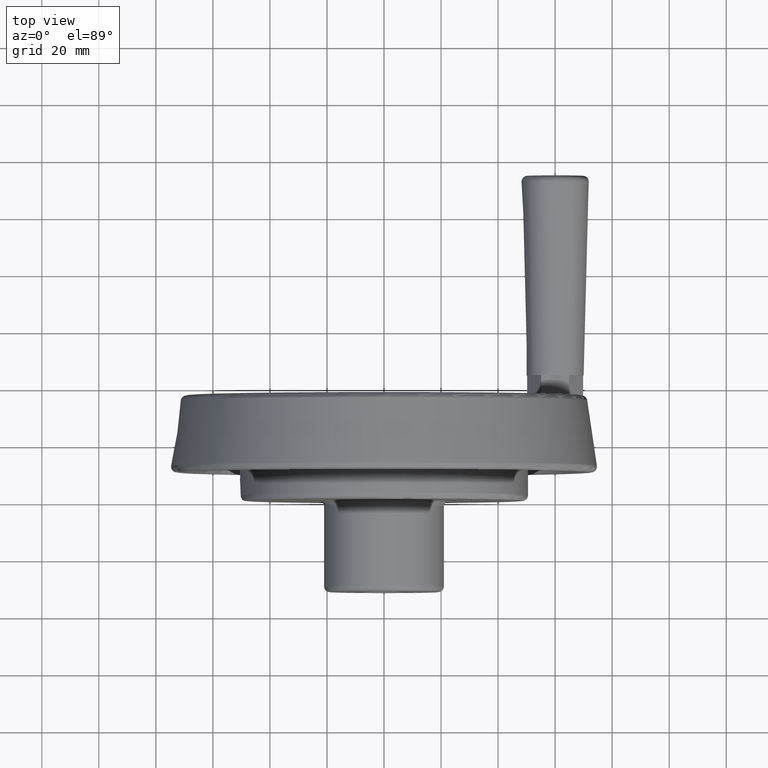
[diagram: clean part render]
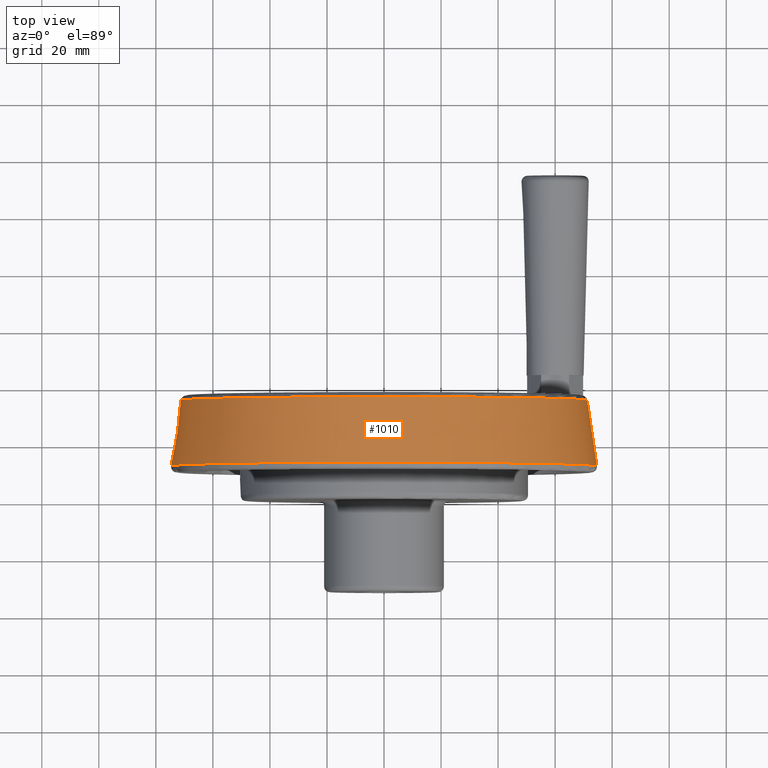
[diagram: same view with one face highlighted and labeled with its STEP entity id]
A machine part, top view. The second image highlights one B-rep face of the part: STEP entity #1010.
In plain terms, the highlighted conical surface has half-angle 8.427 deg.
Its self-contained STEP definition (entity closure, byte-faithful):
#37=B_SPLINE_CURVE_WITH_KNOTS('',3,(#1830,#1831,#1832,#1833,#1834,#1835,
#1836,#1837,#1838,#1839),.UNSPECIFIED.,.F.,.F.,(4,2,2,2,4),(0.278921597355325,
0.283331389591119,0.377129085047892,0.470926780504665,0.475336572740444),
 .UNSPECIFIED.);
#193=CONICAL_SURFACE('',#1104,73.,8.42696902148065);
#204=FACE_BOUND('',#330,.T.);
#257=FACE_OUTER_BOUND('',#329,.T.);
#329=EDGE_LOOP('',(#820,#821));
#330=EDGE_LOOP('',(#822));
#420=CIRCLE('',#1105,74.6602818781957);
#421=CIRCLE('',#1106,71.2528744707883);
#504=VERTEX_POINT('',#1812);
#505=VERTEX_POINT('',#1829);
#508=VERTEX_POINT('',#1875);
#624=EDGE_CURVE('',#505,#504,#37,.T.);
#628=EDGE_CURVE('',#505,#504,#420,.T.);
#629=EDGE_CURVE('',#508,#508,#421,.T.);
#820=ORIENTED_EDGE('',*,*,#624,.T.);
#821=ORIENTED_EDGE('',*,*,#628,.F.);
#822=ORIENTED_EDGE('',*,*,#629,.F.);
#1010=ADVANCED_FACE('',(#257,#204),#193,.T.);
#1104=AXIS2_PLACEMENT_3D('',#1873,#1311,#1312);
#1105=AXIS2_PLACEMENT_3D('',#1874,#1313,#1314);
#1106=AXIS2_PLACEMENT_3D('',#1876,#1315,#1316);
#1311=DIRECTION('center_axis',(1.23614811126766E-16,-1.,0.));
#1312=DIRECTION('ref_axis',(1.,0.,0.));
#1313=DIRECTION('center_axis',(8.92219796145233E-17,-1.,-1.61638833070345E-32));
#1314=DIRECTION('ref_axis',(-1.,-8.92219796145233E-17,-2.64150122855147E-32));
#1315=DIRECTION('center_axis',(-1.24651591433585E-16,1.,2.76776665765268E-32));
#1316=DIRECTION('ref_axis',(-1.,-1.24651591433585E-16,0.));
#1812=CARTESIAN_POINT('',(-74.6536401353653,12.2930973221789,0.995843698084962));
#1829=CARTESIAN_POINT('',(-74.6536401353653,12.2930973221789,-0.995843698085108));
#1830=CARTESIAN_POINT('Ctrl Pts',(-74.6536401353653,12.2930973221789,-0.995843698085105));
#1831=CARTESIAN_POINT('Ctrl Pts',(-74.6529107080884,12.2993081292873,-0.981542271891205));
#1832=CARTESIAN_POINT('Ctrl Pts',(-74.6521976700351,12.3053860395473,-0.967180644685713));
#1833=CARTESIAN_POINT('Ctrl Pts',(-74.636685688484,12.4377423860056,-0.646094392083935));
#1834=CARTESIAN_POINT('Ctrl Pts',(-74.6296296296296,12.5,-0.31265898485591));
#1835=CARTESIAN_POINT('Ctrl Pts',(-74.6296296296296,12.5,0.31265898485591));
#1836=CARTESIAN_POINT('Ctrl Pts',(-74.636685688484,12.4377423860056,0.646094392083949));
#1837=CARTESIAN_POINT('Ctrl Pts',(-74.6521976700351,12.3053860395473,0.967180644685681));
#1838=CARTESIAN_POINT('Ctrl Pts',(-74.6529107080884,12.2993081292874,0.981542271891128));
#1839=CARTESIAN_POINT('Ctrl Pts',(-74.6536401353653,12.293097322179,0.995843698084982));
#1873=CARTESIAN_POINT('Origin',(-2.90486617662415E-15,23.5,0.));
#1874=CARTESIAN_POINT('Origin',(0.,12.2930973221789,-9.14324752255715E-15));
#1875=CARTESIAN_POINT('',(71.2528744707883,35.293097322179,-1.74519209301398E-14));
#1876=CARTESIAN_POINT('Origin',(0.,35.293097322179,-8.7259604650699E-15));